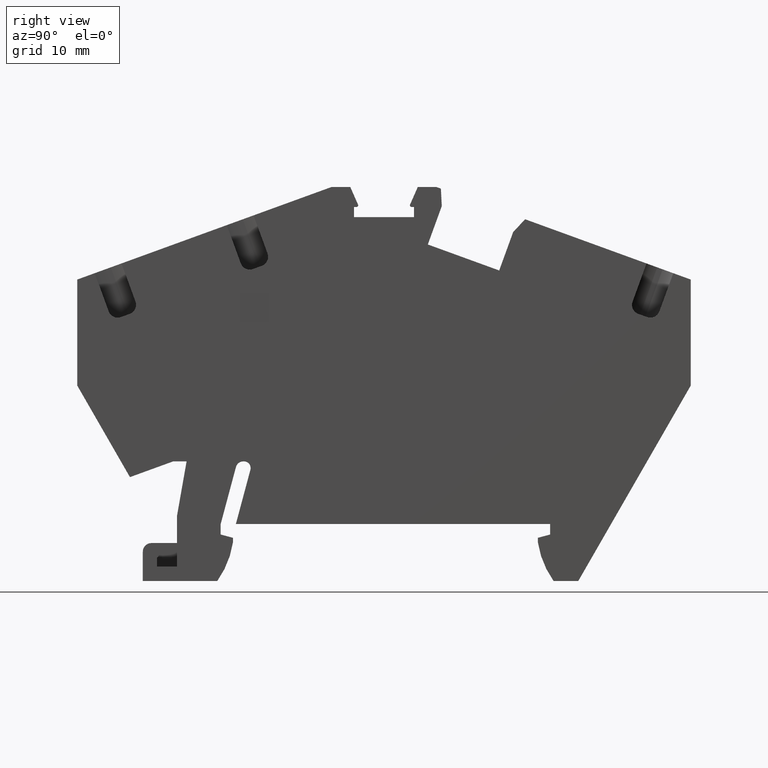
[diagram: clean part render]
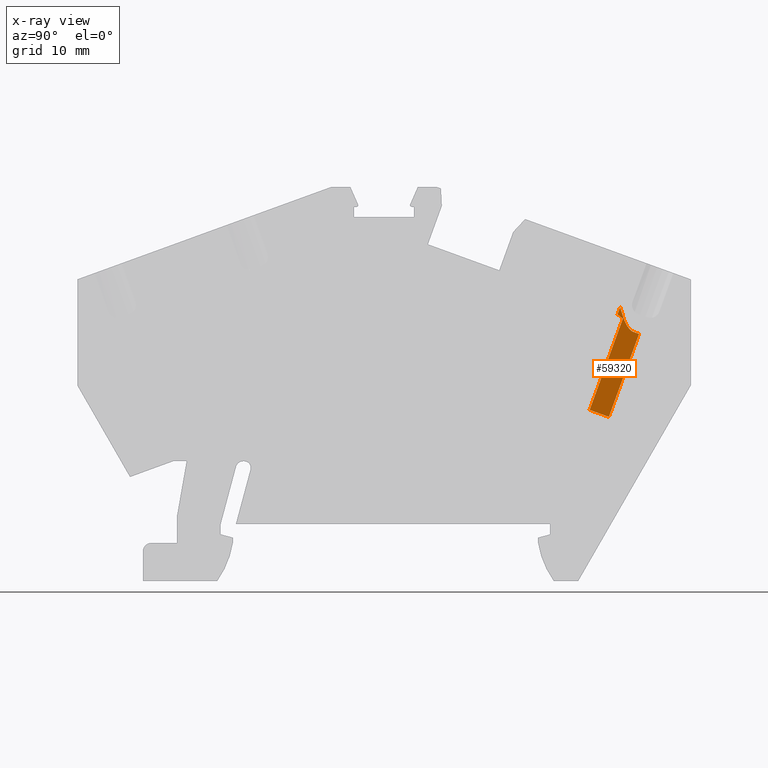
[diagram: x-ray — body ghosted, one internal face saturated and labeled with its STEP entity id]
A machine part, right view, then the same camera in x-ray: the body is ghosted and one INTERNAL B-rep face — a face not visible from any outside direction — is saturated and labeled: STEP entity #59320.
In plain terms, the highlighted planar face has unit normal (1, -0, 0).
Its self-contained STEP definition (entity closure, byte-faithful):
#22720=CARTESIAN_POINT('',(-48.295543004737,36.042918995588,
-0.100000000000004));
#22730=VERTEX_POINT('',#22720);
#22760=CARTESIAN_POINT('',(-52.8028559368728,37.6834467394085,
-0.100000000000013));
#22770=DIRECTION('',(-0.939692620785908,0.342020143325669,
-2.36511016354228E-15));
#22780=VECTOR('',#22770,1.);
#22790=LINE('',#22760,#22780);
#22800=CARTESIAN_POINT('',(-47.7317274322653,35.8377069095926,
-0.100000000000002));
#22810=VERTEX_POINT('',#22800);
#22820=EDGE_CURVE('',#22810,#22730,#22790,.T.);
#42620=CARTESIAN_POINT('',(-49.9963873305181,37.8995356123765,
-0.0999999999959469));
#42630=VERTEX_POINT('',#42620);
#42660=CARTESIAN_POINT('',(-48.9405458092819,40.8004363504831,
-0.100000000000021));
#42670=DIRECTION('',(0.342020143325675,0.939692620785906,
-3.41687474890912E-15));
#42680=VECTOR('',#42670,1.);
#42690=LINE('',#42660,#42680);
#42700=CARTESIAN_POINT('',(-49.727192138931,38.6391433226906,
-0.0999999999956909));
#42710=VERTEX_POINT('',#42700);
#42720=EDGE_CURVE('',#42630,#42710,#42690,.T.);
#57960=CARTESIAN_POINT('',(-48.0055161015975,34.5007178428675,
-0.0999999999999945));
#57970=DIRECTION('',(-1.0158647128781E-15,4.12405414318203E-15,1.));
#57980=DIRECTION('',(0.939692620785908,-0.342020143325669,
2.36511016354228E-15));
#57990=AXIS2_PLACEMENT_3D('',#57960,#57970,#57980);
#58000=PLANE('',#57990);
#58010=ORIENTED_EDGE('',*,*,#22820,.F.);
#58020=CARTESIAN_POINT('',(-47.0805626889093,39.3810499784063,
-1.95000000000001));
#58030=DIRECTION('',(0.342020143325682,0.939692620785904,
-3.05037791231079E-15));
#58040=DIRECTION('',(1.03680740656648E-15,-4.06651456517064E-15,-1.));
#58050=AXIS2_PLACEMENT_3D('',#58020,#58030,#58040);
#58060=CONICAL_SURFACE('',#58050,3.76281181189991,0.493941368919581);
#58070=CARTESIAN_POINT('',(-49.7271921389309,38.6391433226755,
-0.100000000000013));
#58080=CARTESIAN_POINT('',(-49.7107573641803,38.5776441581359,
-0.100000000000013));
#58090=CARTESIAN_POINT('',(-49.6940358703647,38.516224289196,
-0.100000000000013));
#58100=CARTESIAN_POINT('',(-49.6769893194111,38.4549005833922,
-0.100000000000013));
#58110=CARTESIAN_POINT('',(-49.6599427666618,38.393576871129,
-0.100000000000013));
#58120=CARTESIAN_POINT('',(-49.6425712523776,38.3323491568058,
-0.100000000000012));
#58130=CARTESIAN_POINT('',(-49.6248283313952,38.2712362210459,
-0.100000000000011));
#58140=CARTESIAN_POINT('',(-49.6070854145632,38.2101232995816,
-0.100000000000011));
#58150=CARTESIAN_POINT('',(-49.5889712095975,38.1491249040906,
-0.100000000000011));
#58160=CARTESIAN_POINT('',(-49.5704290372553,38.0882629869441,
-0.100000000000011));
#58170=CARTESIAN_POINT('',(-49.5518868802303,38.027401120074,
-0.10000000000001));
#58180=CARTESIAN_POINT('',(-49.5329169025889,37.9666753478189,
-0.100000000000011));
#58190=CARTESIAN_POINT('',(-49.5134493864345,37.9061127539357,
-0.100000000000011));
#58200=CARTESIAN_POINT('',(-49.4939819049361,37.8455502678658,
-0.100000000000011));
#58210=CARTESIAN_POINT('',(-49.4740170645633,37.7851503753975,
-0.100000000000863));
#58220=CARTESIAN_POINT('',(-49.4534683568805,37.7249482629186,
-0.100000000000863));
#58230=CARTESIAN_POINT('',(-49.4329274579703,37.6647690280151,
-0.100000000000863));
#58240=CARTESIAN_POINT('',(-49.4117699374791,37.6046884407769,
-0.100000000000008));
#58250=CARTESIAN_POINT('',(-49.389887010513,37.5447726066138,
-0.100000000000008));
#58260=CARTESIAN_POINT('',(-49.3680060542226,37.4848621681951,
-0.100000000000008));
#58270=CARTESIAN_POINT('',(-49.3454085197111,37.4251399373371,
-0.100000000000009));
#58280=CARTESIAN_POINT('',(-49.3219806807715,37.3657441226963,
-0.100000000000008));
#58290=CARTESIAN_POINT('',(-49.3102666999912,37.3360460599373,
-0.100000000000008));
#58300=CARTESIAN_POINT('',(-49.298344570426,37.3064294807055,
-0.100000000000008));
#58310=CARTESIAN_POINT('',(-49.2861964389782,37.2769120132593,
-0.100000000000008));
#58320=CARTESIAN_POINT('',(-49.2740483000817,37.2473945277142,
-0.100000000000008));
#58330=CARTESIAN_POINT('',(-49.2616741715869,37.2179760830669,
-0.100000000000007));
#58340=CARTESIAN_POINT('',(-49.2490532162796,37.1886748885057,
-0.100000000000007));
#58350=CARTESIAN_POINT('',(-49.2364322555622,37.1593736813841,
-0.100000000000006));
#58360=CARTESIAN_POINT('',(-49.2235644761289,37.130189622747,
-0.100000000000007));
#58370=CARTESIAN_POINT('',(-49.2104255352945,37.1011419343496,
-0.100000000000007));
#58380=CARTESIAN_POINT('',(-49.1972865936921,37.0720942442543,
-0.100000000000007));
#58390=CARTESIAN_POINT('',(-49.1838764907163,37.0431827819801,
-0.100000000000007));
#58400=CARTESIAN_POINT('',(-49.1701667962218,37.0144284425887,
-0.100000000000006));
#58410=CARTESIAN_POINT('',(-49.1564571093115,36.9856741191041,
-0.100000000000006));
#58420=CARTESIAN_POINT('',(-49.1424478166022,36.9570767221648,
-0.100000000000006));
#58430=CARTESIAN_POINT('',(-49.1281057671594,36.9286597722466,
-0.100000000000006));
#58440=CARTESIAN_POINT('',(-49.1137637388544,36.9002428642102,
-0.100000000000005));
#58450=CARTESIAN_POINT('',(-49.0990889154254,36.8720061363941,
-0.100000000000006));
#58460=CARTESIAN_POINT('',(-49.0840427645063,36.8439770508461,
-0.100000000000006));
#58470=CARTESIAN_POINT('',(-49.0689966554526,36.8159480432882,
-0.100000000000006));
#58480=CARTESIAN_POINT('',(-49.0535791413847,36.7881263207345,
-0.100000000000006));
#58490=CARTESIAN_POINT('',(-49.0377456687098,36.7605450447603,
-0.100000000000005));
#58500=CARTESIAN_POINT('',(-49.0219121132889,36.7329636246458,
-0.100000000000005));
#58510=CARTESIAN_POINT('',(-49.0056631553438,36.7056233286896,
-0.100000000000005));
#58520=CARTESIAN_POINT('',(-48.9889456898113,36.6785620440095,
-0.100000000000005));
#58530=CARTESIAN_POINT('',(-48.9722240123791,36.651493941345,
-0.100000000000005));
#58540=CARTESIAN_POINT('',(-48.954985905657,36.6246288127375,
-0.100000000000005));
#58550=CARTESIAN_POINT('',(-48.9372017904275,36.5980759673587,
-0.100000000000005));
#58560=CARTESIAN_POINT('',(-48.9194176493142,36.5715230833337,
-0.100000000000005));
#58570=CARTESIAN_POINT('',(-48.9010873856093,36.5452822444315,
-0.100000000000005));
#58580=CARTESIAN_POINT('',(-48.8821762520183,36.5194644283188,
-0.100000000000004));
#58590=CARTESIAN_POINT('',(-48.8632651012386,36.4936465887397,
-0.100000000000004));
#58600=CARTESIAN_POINT('',(-48.8437728936278,36.4682514628644,
-0.100000000000003));
#58610=CARTESIAN_POINT('',(-48.8236596447259,36.4433925835076,
-0.100000000000003));
#58620=CARTESIAN_POINT('',(-48.8035463989559,36.4185337080216,
-0.100000000000003));
#58630=CARTESIAN_POINT('',(-48.7828118271009,36.3942107131964,
-0.100000000000003));
#58640=CARTESIAN_POINT('',(-48.7614112009967,36.3705408914706,
-0.100000000000003));
#58650=CARTESIAN_POINT('',(-48.7400106109487,36.3468711096241,
-0.100000000000003));
#58660=CARTESIAN_POINT('',(-48.7179435737005,36.3238541303684,
-0.100000000000003));
#58670=CARTESIAN_POINT('',(-48.695161994661,36.3016122451812,
-0.100000000000003));
#58680=CARTESIAN_POINT('',(-48.68377120331,36.2904913007997,
-0.100000000000003));
#58690=CARTESIAN_POINT('',(-48.6722017051772,36.2795641848575,
-0.100000000000357));
#58700=CARTESIAN_POINT('',(-48.6604473439871,36.2688466949049,
-0.100000000000357));
#58710=CARTESIAN_POINT('',(-48.6486910280545,36.2581274226408,
-0.100000000000357));
#58720=CARTESIAN_POINT('',(-48.6367638026301,36.2476293340984,
-0.100000000000048));
#58730=CARTESIAN_POINT('',(-48.6245987731366,36.2373182588318,
-0.100000000000048));
#58740=CARTESIAN_POINT('',(-48.6002754611385,36.2167018270442,
-0.100000000000048));
#58750=CARTESIAN_POINT('',(-48.5750726786911,36.1969029037707,
-0.100000000003199));
#58760=CARTESIAN_POINT('',(-48.5490421099458,36.1781556352683,
-0.100000000003199));
#58770=CARTESIAN_POINT('',(-48.5360272524559,36.1687823084589,
-0.100000000003199));
#58780=CARTESIAN_POINT('',(-48.5228066886765,36.1596720571695,
-0.100000000003253));
#58790=CARTESIAN_POINT('',(-48.5093915215954,36.1508518293972,
-0.100000000003253));
#58800=CARTESIAN_POINT('',(-48.4959763725244,36.1420316134662,
-0.100000000003253));
#58810=CARTESIAN_POINT('',(-48.48236680399,36.1335015917667,
-0.100000000001795));
#58820=CARTESIAN_POINT('',(-48.4685767055295,36.1252858069971,
-0.100000000001795));
#58830=CARTESIAN_POINT('',(-48.4547866064771,36.1170700218748,
-0.100000000001795));
#58840=CARTESIAN_POINT('',(-48.4408162155091,36.1091686502636,
-0.100000000000539));
#58850=CARTESIAN_POINT('',(-48.42668180064,36.1016019214203,
-0.100000000000539));
#58860=CARTESIAN_POINT('',(-48.4125473612018,36.0940351794242,
-0.100000000000539));
#58870=CARTESIAN_POINT('',(-48.3982491850127,36.0868032480563,
-0.100000000000071));
#58880=CARTESIAN_POINT('',(-48.3838051936189,36.0799217705381,
-0.100000000000071));
#58890=CARTESIAN_POINT('',(-48.3693611476737,36.0730402670303,
-0.100000000000071));
#58900=CARTESIAN_POINT('',(-48.3547716094741,36.0665093603529,
-0.100000000000003));
#58910=CARTESIAN_POINT('',(-48.3400550867581,36.0603395753438,
-0.100000000000002));
#58920=CARTESIAN_POINT('',(-48.3253384733245,36.0541697523021,
-0.100000000000002));
#58930=CARTESIAN_POINT('',(-48.3104952126054,36.0483611541887,-0.1));
#58940=CARTESIAN_POINT('',(-48.295543004737,36.042918995588,-0.1));
#58950=B_SPLINE_CURVE_WITH_KNOTS('',3,(#58070,#58080,#58090,#58100,
#58110,#58120,#58130,#58140,#58150,#58160,#58170,#58180,#58190,#58200,
#58210,#58220,#58230,#58240,#58250,#58260,#58270,#58280,#58290,#58300,
#58310,#58320,#58330,#58340,#58350,#58360,#58370,#58380,#58390,#58400,
#58410,#58420,#58430,#58440,#58450,#58460,#58470,#58480,#58490,#58500,
#58510,#58520,#58530,#58540,#58550,#58560,#58570,#58580,#58590,#58600,
#58610,#58620,#58630,#58640,#58650,#58660,#58670,#58680,#58690,#58700,
#58710,#58720,#58730,#58740,#58750,#58760,#58770,#58780,#58790,#58800,
#58810,#58820,#58830,#58840,#58850,#58860,#58870,#58880,#58890,#58900,
#58910,#58920,#58930,#58940),.UNSPECIFIED.,.F.,.F.,(4,3,3,3,3,3,3,3,3,3,
3,3,3,3,3,3,3,3,3,3,3,3,3,3,3,3,3,3,3,4),(0.,0.190960765111183,
0.38188945225103,0.572779509199997,0.76363573078944,0.954474067853704,
1.14554271539402,1.33702237027116,1.43279199721959,1.52852919873573,
1.62420764383395,1.71981258147464,1.81534152899999,1.91080458931298,
2.00622437734654,2.10163632186661,2.19732577256651,2.29328899990191,
2.38927281415696,2.4851088119968,2.58072822261286,2.62846614630679,
2.6762093248645,2.77219791480799,2.82034369868432,2.86850852251385,
2.91663870200757,2.964689255715,3.01262638706222,3.06043056337935),
.UNSPECIFIED.);
#58960=SURFACE_CURVE('',#58950,(#58060,#58000),.CURVE_3D.);
#58970=EDGE_CURVE('',#42710,#22730,#58960,.T.);
#58980=ORIENTED_EDGE('',*,*,#58970,.T.);
#58990=ORIENTED_EDGE('',*,*,#42720,.T.);
#59000=CARTESIAN_POINT('',(-149.182822710554,121.12683695755,
-0.100000000000455));
#59010=DIRECTION('',(0.766044443118993,-0.642787609686522,
3.39686228915895E-15));
#59020=VECTOR('',#59010,1.);
#59030=LINE('',#59000,#59020);
#59040=CARTESIAN_POINT('',(-49.43935476959,37.432129795948,
-0.100000000000012));
#59050=VERTEX_POINT('',#59040);
#59060=EDGE_CURVE('',#42630,#59050,#59030,.T.);
#59070=ORIENTED_EDGE('',*,*,#59060,.F.);
#59080=CARTESIAN_POINT('',(-63.0635358205124,-2.2634338847638E-11,
-0.0999999999998675));
#59090=DIRECTION('',(0.342020143325668,0.939692620785909,
-3.5316535672807E-15));
#59100=VECTOR('',#59090,1.);
#59110=LINE('',#59080,#59100);
#59120=CARTESIAN_POINT('',(-52.9328252881693,27.8338984306212,
-0.0999999999999708));
#59130=VERTEX_POINT('',#59120);
#59140=EDGE_CURVE('',#59130,#59050,#59110,.T.);
#59150=ORIENTED_EDGE('',*,*,#59140,.T.);
#59160=CARTESIAN_POINT('',(-149.182822710554,62.866032540568,
-0.100000000000214));
#59170=DIRECTION('',(-0.939692620785908,0.342020143325669,
-2.37740806984041E-15));
#59180=VECTOR('',#59170,1.);
#59190=LINE('',#59160,#59180);
#59200=CARTESIAN_POINT('',(-50.9125147651942,27.0985655362835,
-0.0999999999999668));
#59210=VERTEX_POINT('',#59200);
#59220=EDGE_CURVE('',#59210,#59130,#59190,.T.);
#59230=ORIENTED_EDGE('',*,*,#59220,.T.);
#59240=CARTESIAN_POINT('',(-55.0172096601714,15.821008998583,
-0.0999999999999246));
#59250=DIRECTION('',(-0.342020143325669,-0.939692620785908,
3.52495810318487E-15));
#59260=VECTOR('',#59250,1.);
#59270=LINE('',#59240,#59260);
#59280=EDGE_CURVE('',#22810,#59210,#59270,.T.);
#59290=ORIENTED_EDGE('',*,*,#59280,.T.);
#59300=EDGE_LOOP('',(#59290,#59230,#59150,#59070,#58990,#58980,#58010));
#59310=FACE_OUTER_BOUND('',#59300,.T.);
#59320=ADVANCED_FACE('',(#59310),#58000,.F.);